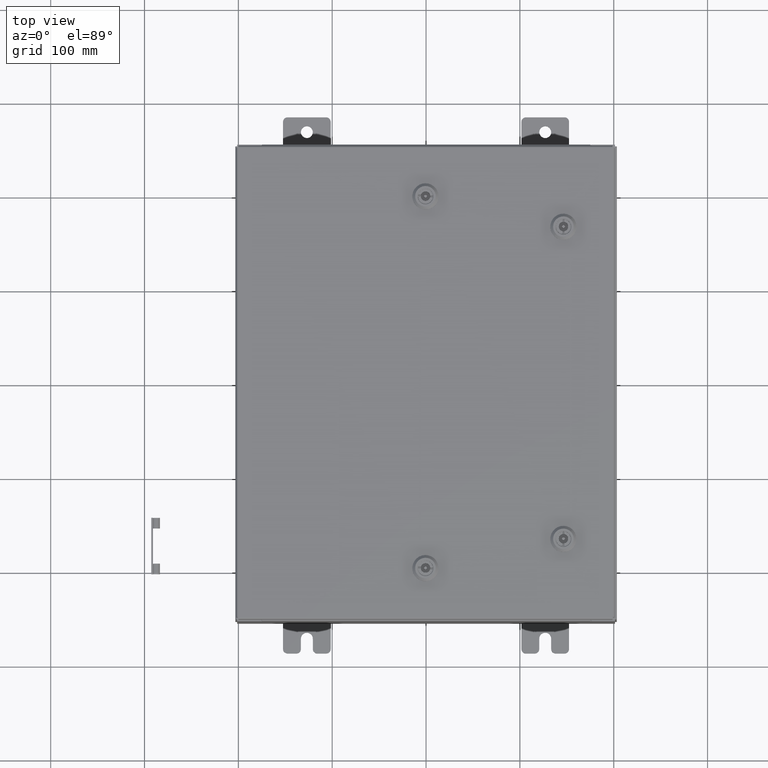
[diagram: clean part render]
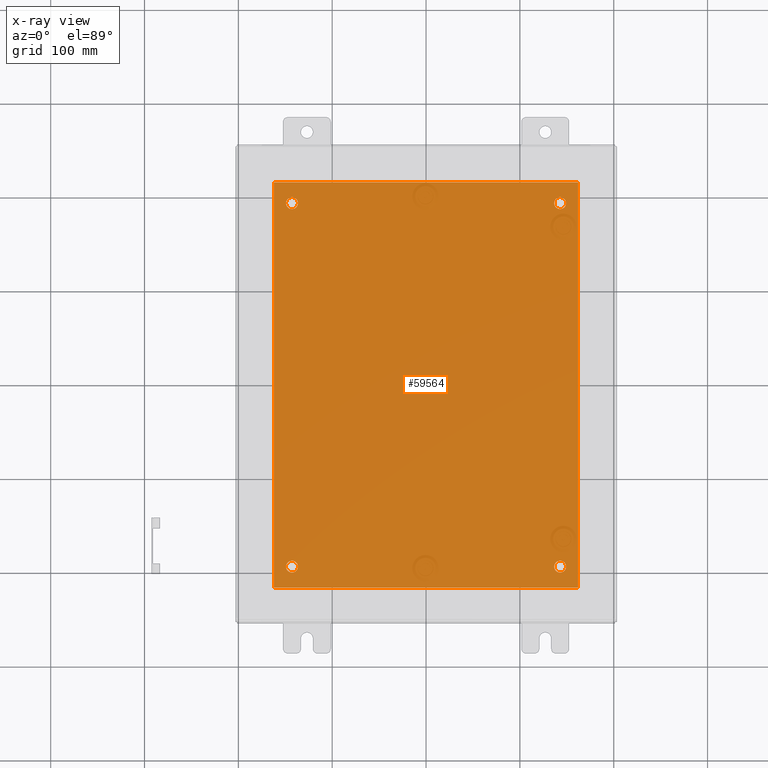
[diagram: x-ray — body ghosted, one internal face saturated and labeled with its STEP entity id]
A machine part, top view, then the same camera in x-ray: the body is ghosted and one INTERNAL B-rep face — a face not visible from any outside direction — is saturated and labeled: STEP entity #59564.
In plain terms, the highlighted planar face has unit normal (0, 0, -1).
Its self-contained STEP definition (entity closure, byte-faithful):
#516 = DIRECTION ( 'NONE',  ( -0.0000000000000000000, -0.0000000000000000000, 1.000000000000000000 ) ) ;
#2374 = CARTESIAN_POINT ( 'NONE',  ( -5.375000000000000900, 7.625000000000001800, -0.1039999999999999800 ) ) ;
#2652 = CIRCLE ( 'NONE', #60467, 0.2499999999999998100 ) ;
#2722 = CARTESIAN_POINT ( 'NONE',  ( 0.0000000000000000000, 0.0000000000000000000, -0.1039999999999999800 ) ) ;
#3887 = DIRECTION ( 'NONE',  ( 1.000000000000000000, 0.0000000000000000000, 0.0000000000000000000 ) ) ;
#3916 = EDGE_CURVE ( 'NONE', #38613, #10642, #27574, .T. ) ;
#4218 = EDGE_CURVE ( 'NONE', #4952, #15156, #18429, .T. ) ;
#4654 = VERTEX_POINT ( 'NONE', #32174 ) ;
#4744 = CIRCLE ( 'NONE', #51067, 0.2499999999999998100 ) ;
#4941 = CARTESIAN_POINT ( 'NONE',  ( -5.625000000000000000, -7.625000000000001800, -0.1039999999999999800 ) ) ;
#4952 = VERTEX_POINT ( 'NONE', #53599 ) ;
#6551 = DIRECTION ( 'NONE',  ( -0.0000000000000000000, -0.0000000000000000000, 1.000000000000000000 ) ) ;
#6660 = AXIS2_PLACEMENT_3D ( 'NONE', #35748, #6551, #40627 ) ;
#7049 = EDGE_CURVE ( 'NONE', #15156, #4952, #60968, .T. ) ;
#7602 = PLANE ( 'NONE',  #53817 ) ;
#8138 = LINE ( 'NONE', #28381, #32541 ) ;
#8584 = CARTESIAN_POINT ( 'NONE',  ( -6.499999999999998200, -8.499999999999998200, -0.1039999999999999800 ) ) ;
#9373 = DIRECTION ( 'NONE',  ( -0.0000000000000000000, -0.0000000000000000000, 1.000000000000000000 ) ) ;
#9776 = ORIENTED_EDGE ( 'NONE', *, *, #42383, .T. ) ;
#9854 = DIRECTION ( 'NONE',  ( -1.000000000000000000, 0.0000000000000000000, 0.0000000000000000000 ) ) ;
#10546 = CARTESIAN_POINT ( 'NONE',  ( -6.499999999999998200, 8.500000000000000000, -0.1039999999999999800 ) ) ;
#10642 = VERTEX_POINT ( 'NONE', #51038 ) ;
#10932 = DIRECTION ( 'NONE',  ( -0.0000000000000000000, -0.0000000000000000000, 1.000000000000000000 ) ) ;
#11247 = AXIS2_PLACEMENT_3D ( 'NONE', #29698, #516, #34619 ) ;
#11480 = VECTOR ( 'NONE', #30513, 39.37007874015748100 ) ;
#11737 = ORIENTED_EDGE ( 'NONE', *, *, #23749, .F. ) ;
#11786 = ORIENTED_EDGE ( 'NONE', *, *, #7049, .T. ) ;
#11982 = ORIENTED_EDGE ( 'NONE', *, *, #56449, .T. ) ;
#13107 = VECTOR ( 'NONE', #3887, 39.37007874015748100 ) ;
#13206 = CIRCLE ( 'NONE', #30360, 0.2499999999999998100 ) ;
#14381 = VERTEX_POINT ( 'NONE', #35977 ) ;
#15156 = VERTEX_POINT ( 'NONE', #54696 ) ;
#15545 = EDGE_CURVE ( 'NONE', #24668, #46729, #4744, .T. ) ;
#15822 = CARTESIAN_POINT ( 'NONE',  ( 6.383000000000002700, -8.499999999999998200, -0.1039999999999998100 ) ) ;
#16488 = DIRECTION ( 'NONE',  ( -0.0000000000000000000, -0.0000000000000000000, 1.000000000000000000 ) ) ;
#16740 = VERTEX_POINT ( 'NONE', #37922 ) ;
#18056 = CARTESIAN_POINT ( 'NONE',  ( -6.382999999999998200, -8.499999999999998200, -0.1039999999999998100 ) ) ;
#18429 = CIRCLE ( 'NONE', #6660, 0.2499999999999987000 ) ;
#20088 = ORIENTED_EDGE ( 'NONE', *, *, #50502, .T. ) ;
#21086 = ORIENTED_EDGE ( 'NONE', *, *, #4218, .T. ) ;
#22321 = EDGE_LOOP ( 'NONE', ( #48094, #42566, #41812, #11737 ) ) ;
#22748 = CARTESIAN_POINT ( 'NONE',  ( -5.375000000000000900, -7.625000000000001800, -0.1039999999999999800 ) ) ;
#23710 = EDGE_CURVE ( 'NONE', #52377, #54446, #40480, .T. ) ;
#23749 = EDGE_CURVE ( 'NONE', #10642, #16740, #24433, .T. ) ;
#24433 = LINE ( 'NONE', #15822, #11480 ) ;
#24441 = DIRECTION ( 'NONE',  ( -0.0000000000000000000, -0.0000000000000000000, 1.000000000000000000 ) ) ;
#24668 = VERTEX_POINT ( 'NONE', #39022 ) ;
#24900 = DIRECTION ( 'NONE',  ( -0.0000000000000000000, -0.0000000000000000000, 1.000000000000000000 ) ) ;
#27574 = LINE ( 'NONE', #8584, #13107 ) ;
#28381 = CARTESIAN_POINT ( 'NONE',  ( -6.382999999999998200, 8.500000000000000000, -0.1039999999999998100 ) ) ;
#28897 = FACE_OUTER_BOUND ( 'NONE', #22321, .T. ) ;
#29698 = CARTESIAN_POINT ( 'NONE',  ( 5.625000000000000000, 7.625000000000002700, -0.1039999999999999800 ) ) ;
#30127 = DIRECTION ( 'NONE',  ( -1.000000000000000000, -0.0000000000000000000, -0.0000000000000000000 ) ) ;
#30360 = AXIS2_PLACEMENT_3D ( 'NONE', #54118, #24900, #59069 ) ;
#30513 = DIRECTION ( 'NONE',  ( 0.0000000000000000000, 1.000000000000000000, 0.0000000000000000000 ) ) ;
#32111 = DIRECTION ( 'NONE',  ( -1.000000000000000000, 0.0000000000000000000, -0.0000000000000000000 ) ) ;
#32174 = CARTESIAN_POINT ( 'NONE',  ( 5.874999999999999100, 7.625000000000002700, -0.1039999999999999800 ) ) ;
#32541 = VECTOR ( 'NONE', #33304, 39.37007874015748100 ) ;
#32884 = CARTESIAN_POINT ( 'NONE',  ( -6.382999999999998200, 8.500000000000000000, -0.1039999999999998100 ) ) ;
#33304 = DIRECTION ( 'NONE',  ( 0.0000000000000000000, -1.000000000000000000, 0.0000000000000000000 ) ) ;
#33482 = FACE_BOUND ( 'NONE', #37051, .T. ) ;
#34619 = DIRECTION ( 'NONE',  ( -1.000000000000000000, 0.0000000000000000000, 0.0000000000000000000 ) ) ;
#35748 = CARTESIAN_POINT ( 'NONE',  ( 5.625000000000004400, -7.625000000000000900, -0.1039999999999999800 ) ) ;
#35977 = CARTESIAN_POINT ( 'NONE',  ( 5.375000000000001800, 7.625000000000002700, -0.1039999999999999800 ) ) ;
#36632 = EDGE_LOOP ( 'NONE', ( #38792, #20088 ) ) ;
#36999 = VECTOR ( 'NONE', #30127, 39.37007874015748100 ) ;
#37051 = EDGE_LOOP ( 'NONE', ( #21086, #11786 ) ) ;
#37922 = CARTESIAN_POINT ( 'NONE',  ( 6.383000000000000900, 8.500000000000000000, -0.1039999999999999800 ) ) ;
#38307 = ORIENTED_EDGE ( 'NONE', *, *, #15545, .T. ) ;
#38571 = CARTESIAN_POINT ( 'NONE',  ( -5.625000000000000000, 7.625000000000001800, -0.1039999999999999800 ) ) ;
#38613 = VERTEX_POINT ( 'NONE', #18056 ) ;
#38792 = ORIENTED_EDGE ( 'NONE', *, *, #23710, .T. ) ;
#39022 = CARTESIAN_POINT ( 'NONE',  ( -5.875000000000000000, 7.625000000000001800, -0.1039999999999999800 ) ) ;
#39047 = DIRECTION ( 'NONE',  ( -0.0000000000000000000, -0.0000000000000000000, 1.000000000000000000 ) ) ;
#40037 = EDGE_CURVE ( 'NONE', #16740, #62777, #61451, .T. ) ;
#40142 = CARTESIAN_POINT ( 'NONE',  ( -5.625000000000000000, -7.625000000000001800, -0.1039999999999999800 ) ) ;
#40480 = CIRCLE ( 'NONE', #49344, 0.2499999999999998100 ) ;
#40627 = DIRECTION ( 'NONE',  ( -1.000000000000000000, 0.0000000000000000000, 0.0000000000000000000 ) ) ;
#41812 = ORIENTED_EDGE ( 'NONE', *, *, #40037, .F. ) ;
#41843 = FACE_BOUND ( 'NONE', #49243, .T. ) ;
#42383 = EDGE_CURVE ( 'NONE', #46729, #24668, #13206, .T. ) ;
#42566 = ORIENTED_EDGE ( 'NONE', *, *, #47710, .F. ) ;
#43447 = DIRECTION ( 'NONE',  ( -1.000000000000000000, 0.0000000000000000000, 0.0000000000000000000 ) ) ;
#43534 = CARTESIAN_POINT ( 'NONE',  ( -5.875000000000000000, -7.625000000000001800, -0.1039999999999999800 ) ) ;
#44923 = FACE_BOUND ( 'NONE', #36632, .T. ) ;
#45021 = DIRECTION ( 'NONE',  ( -1.000000000000000000, 0.0000000000000000000, 0.0000000000000000000 ) ) ;
#45691 = CARTESIAN_POINT ( 'NONE',  ( 5.625000000000004400, -7.625000000000000900, -0.1039999999999999800 ) ) ;
#46729 = VERTEX_POINT ( 'NONE', #2374 ) ;
#47602 = CIRCLE ( 'NONE', #51449, 0.2499999999999987000 ) ;
#47710 = EDGE_CURVE ( 'NONE', #62777, #38613, #8138, .T. ) ;
#48094 = ORIENTED_EDGE ( 'NONE', *, *, #3916, .F. ) ;
#48174 = CIRCLE ( 'NONE', #11247, 0.2499999999999987000 ) ;
#49243 = EDGE_LOOP ( 'NONE', ( #9776, #38307 ) ) ;
#49344 = AXIS2_PLACEMENT_3D ( 'NONE', #40142, #10932, #45021 ) ;
#49599 = ORIENTED_EDGE ( 'NONE', *, *, #51248, .T. ) ;
#50431 = AXIS2_PLACEMENT_3D ( 'NONE', #45691, #16488, #50601 ) ;
#50502 = EDGE_CURVE ( 'NONE', #54446, #52377, #2652, .T. ) ;
#50601 = DIRECTION ( 'NONE',  ( -1.000000000000000000, 0.0000000000000000000, 0.0000000000000000000 ) ) ;
#51038 = CARTESIAN_POINT ( 'NONE',  ( 6.383000000000000900, -8.499999999999998200, -0.1039999999999999800 ) ) ;
#51067 = AXIS2_PLACEMENT_3D ( 'NONE', #38571, #9373, #43447 ) ;
#51248 = EDGE_CURVE ( 'NONE', #4654, #14381, #47602, .T. ) ;
#51449 = AXIS2_PLACEMENT_3D ( 'NONE', #53660, #24441, #58607 ) ;
#52377 = VERTEX_POINT ( 'NONE', #22748 ) ;
#53599 = CARTESIAN_POINT ( 'NONE',  ( 5.875000000000003600, -7.625000000000000900, -0.1039999999999999800 ) ) ;
#53660 = CARTESIAN_POINT ( 'NONE',  ( 5.625000000000000000, 7.625000000000002700, -0.1039999999999999800 ) ) ;
#53817 = AXIS2_PLACEMENT_3D ( 'NONE', #2722, #61362, #32111 ) ;
#54118 = CARTESIAN_POINT ( 'NONE',  ( -5.625000000000000000, 7.625000000000001800, -0.1039999999999999800 ) ) ;
#54446 = VERTEX_POINT ( 'NONE', #43534 ) ;
#54696 = CARTESIAN_POINT ( 'NONE',  ( 5.375000000000006200, -7.625000000000000900, -0.1039999999999999800 ) ) ;
#54837 = FACE_BOUND ( 'NONE', #57330, .T. ) ;
#56449 = EDGE_CURVE ( 'NONE', #14381, #4654, #48174, .T. ) ;
#57330 = EDGE_LOOP ( 'NONE', ( #49599, #11982 ) ) ;
#58607 = DIRECTION ( 'NONE',  ( -1.000000000000000000, 0.0000000000000000000, 0.0000000000000000000 ) ) ;
#59069 = DIRECTION ( 'NONE',  ( -1.000000000000000000, 0.0000000000000000000, 0.0000000000000000000 ) ) ;
#59564 = ADVANCED_FACE ( 'NONE', ( #44923, #33482, #54837, #41843, #28897 ), #7602, .T. ) ;
#60467 = AXIS2_PLACEMENT_3D ( 'NONE', #4941, #39047, #9854 ) ;
#60968 = CIRCLE ( 'NONE', #50431, 0.2499999999999987000 ) ;
#61362 = DIRECTION ( 'NONE',  ( 0.0000000000000000000, 0.0000000000000000000, -1.000000000000000000 ) ) ;
#61451 = LINE ( 'NONE', #10546, #36999 ) ;
#62777 = VERTEX_POINT ( 'NONE', #32884 ) ;